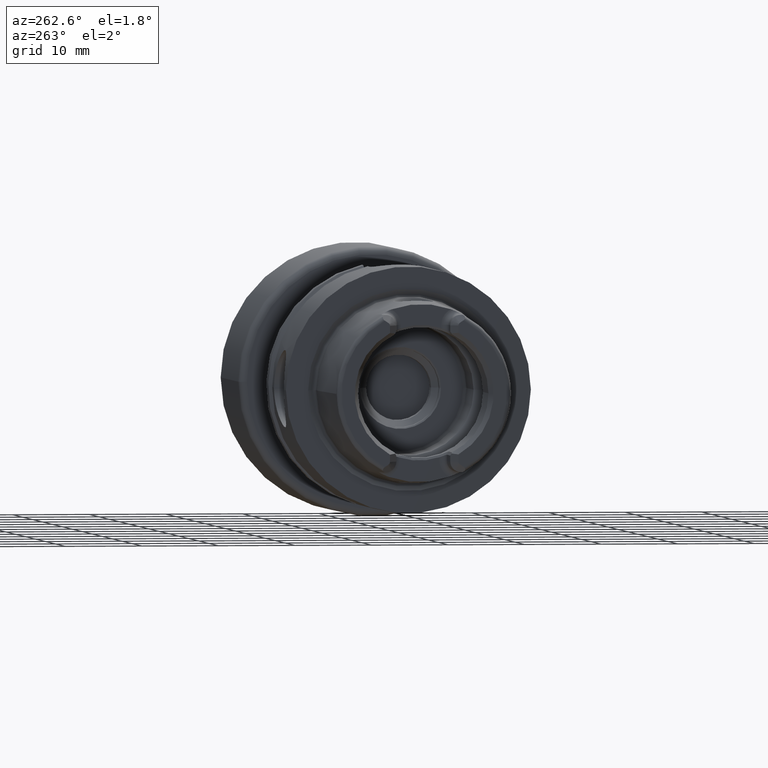
[diagram: clean part render]
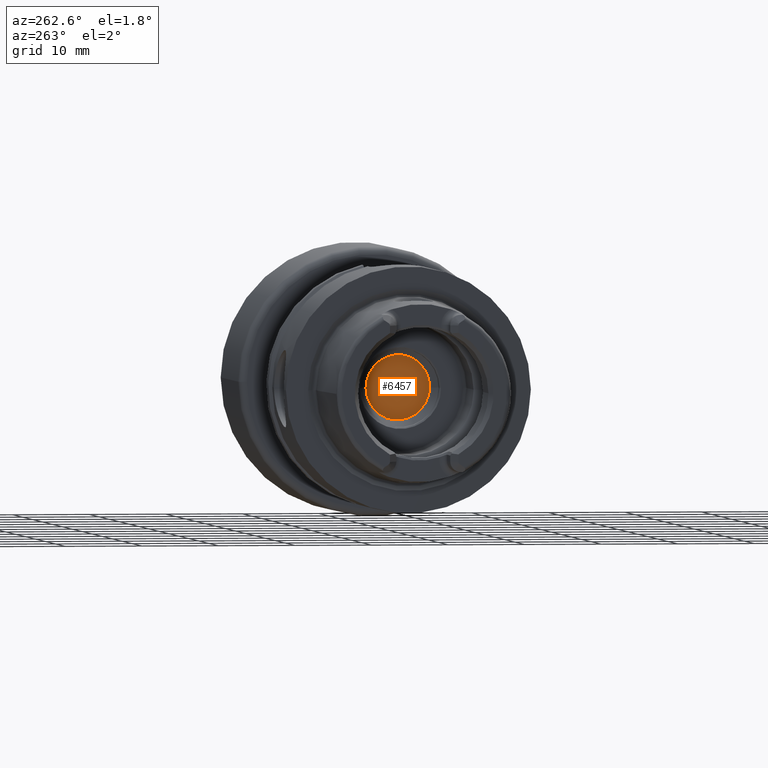
[diagram: same view with one face highlighted and labeled with its STEP entity id]
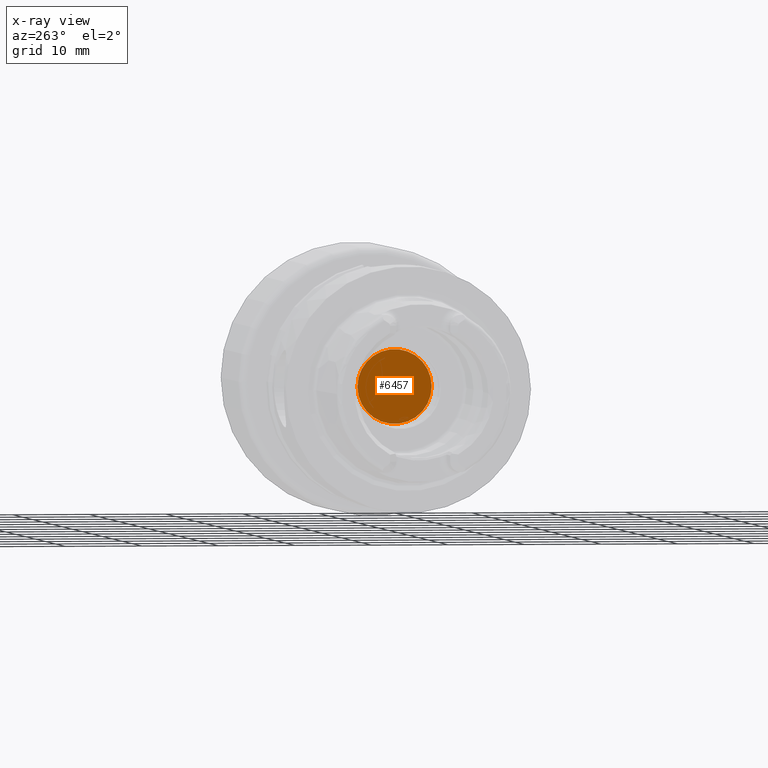
[diagram: x-ray of the same camera — body ghosted, the highlighted face saturated]
A machine part, auxiliary view. The second image highlights one B-rep face of the part: STEP entity #6457.
The next image is the same camera in x-ray: the body ghosted, the highlighted face saturated — about 1% of this face is hidden behind the body in this view.
In plain terms, the highlighted planar face has unit normal (1, 0, 0).
Its self-contained STEP definition (entity closure, byte-faithful):
#2584=CARTESIAN_POINT('',(1.395E1,0.E0,0.E0));
#2585=DIRECTION('',(1.E0,0.E0,0.E0));
#2586=DIRECTION('',(0.E0,1.E0,0.E0));
#2587=AXIS2_PLACEMENT_3D('',#2584,#2585,#2586);
#2589=CARTESIAN_POINT('',(1.395E1,0.E0,0.E0));
#2590=DIRECTION('',(1.E0,0.E0,0.E0));
#2591=DIRECTION('',(0.E0,-1.E0,0.E0));
#2592=AXIS2_PLACEMENT_3D('',#2589,#2590,#2591);
#3272=CARTESIAN_POINT('',(1.395E1,4.85E0,0.E0));
#3273=CARTESIAN_POINT('',(1.395E1,-4.85E0,0.E0));
#3274=VERTEX_POINT('',#3272);
#3275=VERTEX_POINT('',#3273);
#6447=CARTESIAN_POINT('',(1.395E1,0.E0,0.E0));
#6448=DIRECTION('',(1.E0,0.E0,0.E0));
#6449=DIRECTION('',(0.E0,-1.E0,0.E0));
#6450=AXIS2_PLACEMENT_3D('',#6447,#6448,#6449);
#6451=PLANE('',#6450);
#6452=ORIENTED_EDGE('',*,*,#6437,.T.);
#6454=ORIENTED_EDGE('',*,*,#6453,.T.);
#6455=EDGE_LOOP('',(#6452,#6454));
#6456=FACE_OUTER_BOUND('',#6455,.F.);
#6457=ADVANCED_FACE('',(#6456),#6451,.F.);
#2588=CIRCLE('',#2587,4.85E0);
#2593=CIRCLE('',#2592,4.85E0);
#6437=EDGE_CURVE('',#3274,#3275,#2588,.T.);
#6453=EDGE_CURVE('',#3275,#3274,#2593,.T.);